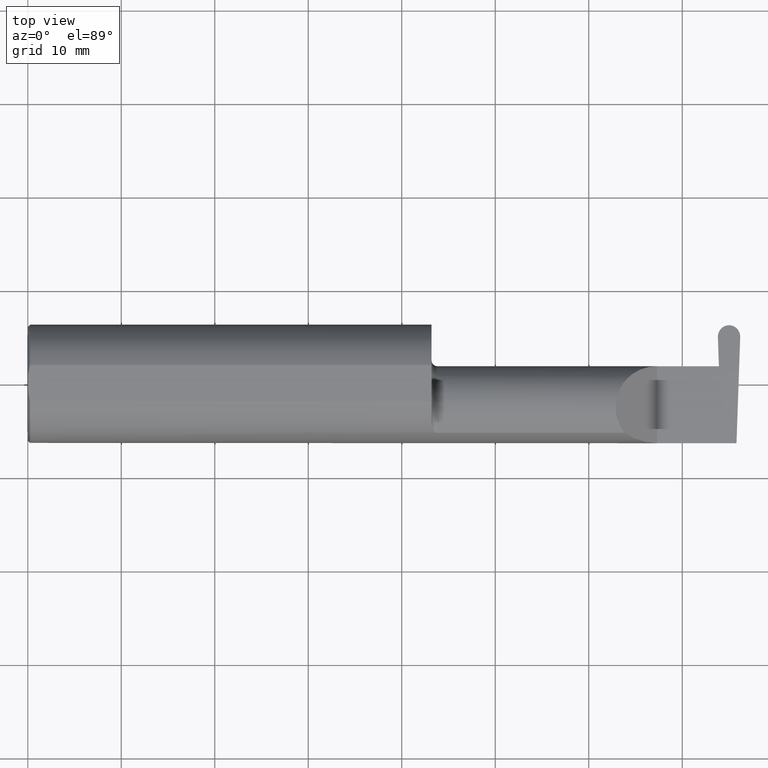
[diagram: clean part render]
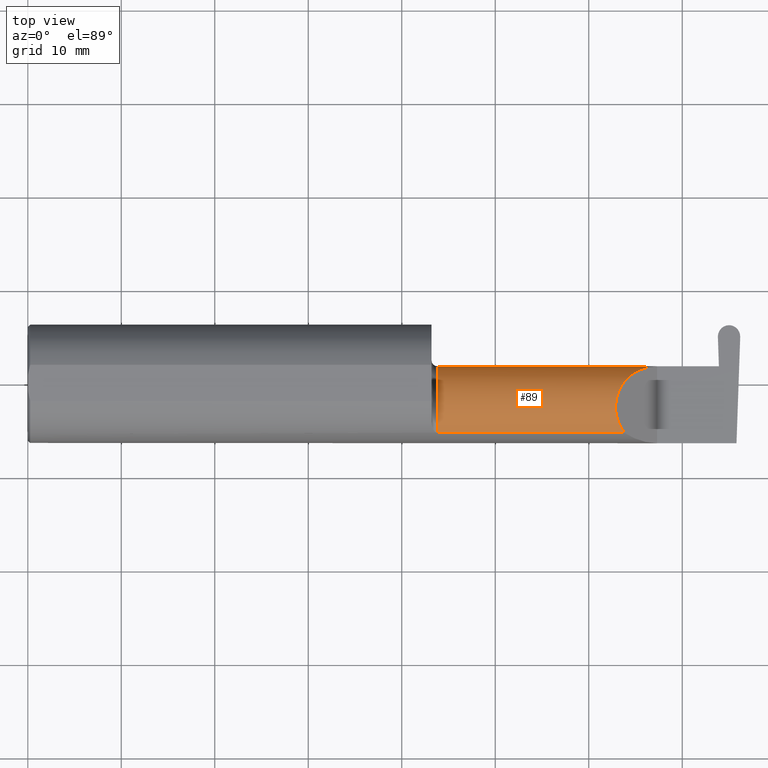
[diagram: same view with one face highlighted and labeled with its STEP entity id]
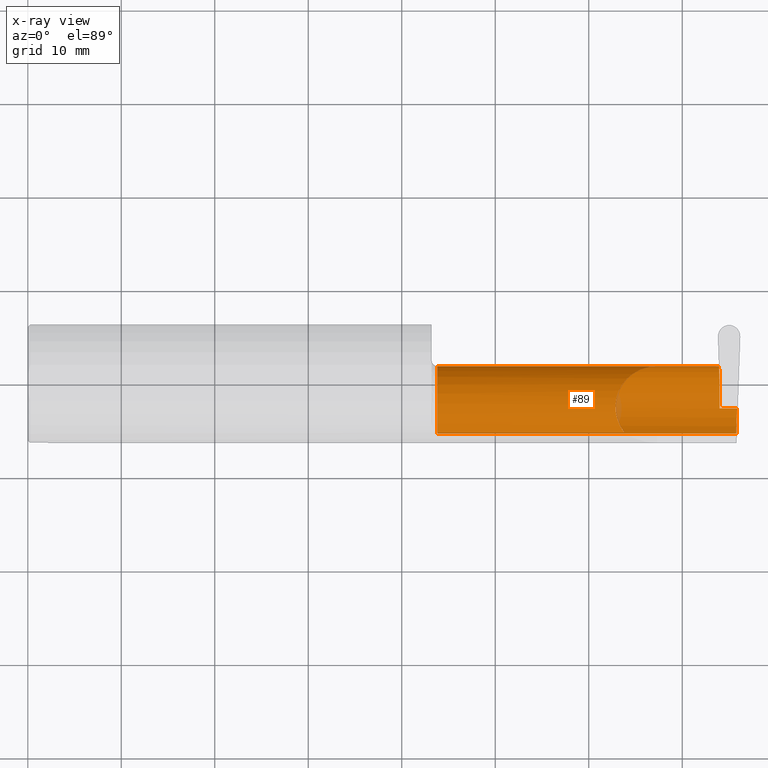
[diagram: x-ray of the same camera — body ghosted, the highlighted face saturated]
A machine part, top view. The second image highlights one B-rep face of the part: STEP entity #89.
The next image is the same camera in x-ray: the body ghosted, the highlighted face saturated — about 1% of this face is hidden behind the body in this view.
In plain terms, the highlighted cylindrical surface (partial cylindrical patch) has radius 4.445 mm, axis along (-1, 0, -0).
Its self-contained STEP definition (entity closure, byte-faithful):
#5 = ORIENTED_EDGE ( 'NONE', *, *, #140, .T. ) ;
#10 = EDGE_LOOP ( 'NONE', ( #5, #610, #444, #145, #21, #114, #254, #671, #198, #668 ) ) ;
#21 = ORIENTED_EDGE ( 'NONE', *, *, #309, .T. ) ;
#23 = DIRECTION ( 'NONE',  ( 1.000000000000000000, -4.247829560181828762E-17, 0.000000000000000000 ) ) ;
#36 = VERTEX_POINT ( 'NONE', #596 ) ;
#39 = FACE_OUTER_BOUND ( 'NONE', #10, .T. ) ;
#51 = VECTOR ( 'NONE', #179, 39.37007874015748143 ) ;
#61 = VECTOR ( 'NONE', #633, 39.37007874015748143 ) ;
#76 = CARTESIAN_POINT ( 'NONE',  ( 3.402190948718818220, -0.1008500000000002589, -0.1750000000000000722 ) ) ;
#78 = CARTESIAN_POINT ( 'NONE',  ( 2.913397403057193191, -0.001152430219566448651, -0.1750000000000001832 ) ) ;
#83 = CARTESIAN_POINT ( 'NONE',  ( 2.986463790105515770, -0.1008500000000002589, -0.1750000000000000722 ) ) ;
#89 = ADVANCED_FACE ( 'NONE', ( #39 ), #476, .T. ) ;
#91 = VERTEX_POINT ( 'NONE', #176 ) ;
#92 = EDGE_CURVE ( 'NONE', #467, #168, #209, .T. ) ;
#105 = CARTESIAN_POINT ( 'NONE',  ( 2.899170153812740125, 0.07414999999999995206, 0.000000000000000000 ) ) ;
#109 = CARTESIAN_POINT ( 'NONE',  ( 2.983360130692194634, -0.2080850024789288044, -0.1382955322609671633 ) ) ;
#114 = ORIENTED_EDGE ( 'NONE', *, *, #503, .F. ) ;
#124 = VERTEX_POINT ( 'NONE', #229 ) ;
#140 = EDGE_CURVE ( 'NONE', #560, #168, #616, .T. ) ;
#142 = VECTOR ( 'NONE', #181, 39.37007874015748143 ) ;
#145 = ORIENTED_EDGE ( 'NONE', *, *, #536, .T. ) ;
#167 = DIRECTION ( 'NONE',  ( -1.000000000000000000, 4.247829560181828762E-17, -0.000000000000000000 ) ) ;
#168 = VERTEX_POINT ( 'NONE', #561 ) ;
#176 = CARTESIAN_POINT ( 'NONE',  ( 2.899170153812740125, 0.07414999999999995206, 0.000000000000000000 ) ) ;
#179 = DIRECTION ( 'NONE',  ( -1.000000000000000000, 4.247829560181828762E-17, -0.000000000000000000 ) ) ;
#181 = DIRECTION ( 'NONE',  ( -1.000000000000000000, -0.000000000000000000, -0.000000000000000000 ) ) ;
#197 = LINE ( 'NONE', #249, #645 ) ;
#198 = ORIENTED_EDGE ( 'NONE', *, *, #546, .F. ) ;
#203 = CARTESIAN_POINT ( 'NONE',  ( 1.725000000000000089, -0.2080850024789288877, 0.1382955322609669413 ) ) ;
#209 = CIRCLE ( 'NONE', #370, 0.1750000000000000444 ) ;
#212 = CARTESIAN_POINT ( 'NONE',  ( 2.482823929317965472, 0.07414999999999999369, 0.1671760706820332731 ) ) ;
#223 = CARTESIAN_POINT ( 'NONE',  ( 1.725000000000000089, -0.1008500000000000785, 0.000000000000000000 ) ) ;
#228 = LINE ( 'NONE', #436, #418 ) ;
#229 = CARTESIAN_POINT ( 'NONE',  ( 2.650000000000000355, 0.07414999999999995206, 1.592040838891556877E-16 ) ) ;
#231 = VERTEX_POINT ( 'NONE', #677 ) ;
#233 = EDGE_CURVE ( 'NONE', #291, #446, #689, .T. ) ;
#249 = CARTESIAN_POINT ( 'NONE',  ( 1.700000000000000178, 0.07414999999999999369, 1.592040838891556877E-16 ) ) ;
#253 = CARTESIAN_POINT ( 'NONE',  ( 2.899063548541081836, 0.07404339472834164937, -0.006107411922940303266 ) ) ;
#254 = ORIENTED_EDGE ( 'NONE', *, *, #233, .F. ) ;
#257 = EDGE_CURVE ( 'NONE', #231, #291, #613, .T. ) ;
#261 = CARTESIAN_POINT ( 'NONE',  ( 2.899099083631634599, 0.07407892981889442618, -0.004071607948626863351 ) ) ;
#291 = VERTEX_POINT ( 'NONE', #523 ) ;
#309 = EDGE_CURVE ( 'NONE', #124, #91, #197, .T. ) ;
#319 = CARTESIAN_POINT ( 'NONE',  ( 2.983360130692194634, -0.2080850024789288044, -0.1382955322609671633 ) ) ;
#353 = CARTESIAN_POINT ( 'NONE',  ( 1.700000000000000178, 0.07404339472834167712, -0.006107411922940873122 ) ) ;
#354 = VERTEX_POINT ( 'NONE', #83 ) ;
#370 = AXIS2_PLACEMENT_3D ( 'NONE', #223, #167, #605 ) ;
#379 = CARTESIAN_POINT ( 'NONE',  ( 2.409263745716142768, -0.07597241004310609225, 0.2407362542838549779 ) ) ;
#392 = DIRECTION ( 'NONE',  ( 0.000000000000000000, -1.000000000000000000, 0.000000000000000000 ) ) ;
#417 = CARTESIAN_POINT ( 'NONE',  ( 2.984022185481226330, -0.1771157075472507281, -0.1623092683844333250 ) ) ;
#418 = VECTOR ( 'NONE', #447, 39.37007874015748143 ) ;
#424 = DIRECTION ( 'NONE',  ( -1.000000000000000000, 4.247829560181828762E-17, -0.000000000000000000 ) ) ;
#431 = CARTESIAN_POINT ( 'NONE',  ( 2.899134618722187362, 0.07411446490944717524, -0.002035803974313431242 ) ) ;
#436 = CARTESIAN_POINT ( 'NONE',  ( 2.315421434999999750, -0.2080850024789287489, 0.1382955322609671633 ) ) ;
#444 = ORIENTED_EDGE ( 'NONE', *, *, #611, .T. ) ;
#446 = VERTEX_POINT ( 'NONE', #540 ) ;
#447 = DIRECTION ( 'NONE',  ( 1.000000000000000000, -4.247829560181828762E-17, 0.000000000000000000 ) ) ;
#451 = CARTESIAN_POINT ( 'NONE',  ( 2.315421434999999750, -0.2080850024789287489, -0.1382955322609671633 ) ) ;
#452 = B_SPLINE_CURVE_WITH_KNOTS ( 'NONE', 3,
 ( #253, #261, #431, #105 ),
 .UNSPECIFIED., .F., .F.,
 ( 4, 4 ),
 ( 0.000000000000000000, 1.000000000000000000 ),
 .UNSPECIFIED. ) ;
#456 = CARTESIAN_POINT ( 'NONE',  ( 2.650000000000000355, 0.07414999999999995206, 1.592040838891556877E-16 ) ) ;
#458 = CARTESIAN_POINT ( 'NONE',  ( 2.910321839925223752, 0.07404339472834164937, -0.006107411922940873990 ) ) ;
#467 = VERTEX_POINT ( 'NONE', #203 ) ;
#476 = CYLINDRICAL_SURFACE ( 'NONE', #649, 0.1750000000000001277 ) ;
#503 = EDGE_CURVE ( 'NONE', #446, #91, #452, .T. ) ;
#521 = EDGE_CURVE ( 'NONE', #560, #354, #567, .T. ) ;
#523 = CARTESIAN_POINT ( 'NONE',  ( 2.910321839925223752, 0.07404339472834164937, -0.006107411922940873990 ) ) ;
#536 = EDGE_CURVE ( 'NONE', #36, #124, #639, .T. ) ;
#540 = CARTESIAN_POINT ( 'NONE',  ( 2.899063548541081836, 0.07404339472834164937, -0.006107411922940303266 ) ) ;
#543 = CARTESIAN_POINT ( 'NONE',  ( 2.985095289412895703, -0.1400387324517232412, -0.1750000000000000722 ) ) ;
#546 = EDGE_CURVE ( 'NONE', #354, #231, #568, .T. ) ;
#560 = VERTEX_POINT ( 'NONE', #109 ) ;
#561 = CARTESIAN_POINT ( 'NONE',  ( 1.725000000000000089, -0.2080850024789288599, -0.1382955322609669691 ) ) ;
#567 =( BOUNDED_CURVE ( )  B_SPLINE_CURVE ( 3, ( #319, #417, #543, #589 ),
 .UNSPECIFIED., .F., .F. ) 
 B_SPLINE_CURVE_WITH_KNOTS ( ( 4, 4 ),
 ( 0.4474640105399506074, 1.107026853503852104 ),
 .UNSPECIFIED. ) 
 CURVE ( )  GEOMETRIC_REPRESENTATION_ITEM ( )  RATIONAL_B_SPLINE_CURVE ( ( 1.000000000000000000, 0.9640754331822833922, 0.9640754331822833922, 1.000000000000000000 ) ) 
 REPRESENTATION_ITEM ( '' )  );
#568 = LINE ( 'NONE', #76, #142 ) ;
#586 = CARTESIAN_POINT ( 'NONE',  ( 1.700000000000000178, -0.1008500000000000785, 0.000000000000000000 ) ) ;
#589 = CARTESIAN_POINT ( 'NONE',  ( 2.986463790105515770, -0.1008500000000002589, -0.1750000000000000722 ) ) ;
#596 = CARTESIAN_POINT ( 'NONE',  ( 2.511704467739031443, -0.2080850024789284436, 0.1382955322609674687 ) ) ;
#605 = DIRECTION ( 'NONE',  ( 0.000000000000000000, -1.000000000000000000, 0.000000000000000000 ) ) ;
#610 = ORIENTED_EDGE ( 'NONE', *, *, #92, .F. ) ;
#611 = EDGE_CURVE ( 'NONE', #467, #36, #228, .T. ) ;
#613 =( BOUNDED_CURVE ( )  B_SPLINE_CURVE ( 3, ( #623, #78, #681, #458 ),
 .UNSPECIFIED., .F., .F. ) 
 B_SPLINE_CURVE_WITH_KNOTS ( ( 4, 4 ),
 ( 3.159045946109738434, 4.694935687864730589 ),
 .UNSPECIFIED. ) 
 CURVE ( )  GEOMETRIC_REPRESENTATION_ITEM ( )  RATIONAL_B_SPLINE_CURVE ( ( 1.000000000000000000, 0.8128932002257714950, 0.8128932002257714950, 1.000000000000000000 ) ) 
 REPRESENTATION_ITEM ( '' )  );
#616 = LINE ( 'NONE', #451, #51 ) ;
#623 = CARTESIAN_POINT ( 'NONE',  ( 2.913428848522521708, -0.1008500000000001479, -0.1750000000000001277 ) ) ;
#633 = DIRECTION ( 'NONE',  ( -1.000000000000000000, 4.247829560181828762E-17, -0.000000000000000000 ) ) ;
#639 =( BOUNDED_CURVE ( )  B_SPLINE_CURVE ( 3, ( #655, #379, #212, #456 ),
 .UNSPECIFIED., .F., .F. ) 
 B_SPLINE_CURVE_WITH_KNOTS ( ( 4, 4 ),
 ( 5.623622464215686456, 7.853981633974482790 ),
 .UNSPECIFIED. ) 
 CURVE ( )  GEOMETRIC_REPRESENTATION_ITEM ( )  RATIONAL_B_SPLINE_CURVE ( ( 1.000000000000000000, 0.6266774836124012760, 0.6266774836124012760, 1.000000000000000000 ) ) 
 REPRESENTATION_ITEM ( '' )  );
#645 = VECTOR ( 'NONE', #23, 39.37007874015748143 ) ;
#649 = AXIS2_PLACEMENT_3D ( 'NONE', #586, #424, #392 ) ;
#655 = CARTESIAN_POINT ( 'NONE',  ( 2.511704467739031443, -0.2080850024789284436, 0.1382955322609674687 ) ) ;
#668 = ORIENTED_EDGE ( 'NONE', *, *, #521, .F. ) ;
#671 = ORIENTED_EDGE ( 'NONE', *, *, #257, .F. ) ;
#677 = CARTESIAN_POINT ( 'NONE',  ( 2.913428848522521708, -0.1008500000000001479, -0.1750000000000001277 ) ) ;
#681 = CARTESIAN_POINT ( 'NONE',  ( 2.912123349427337082, 0.07056399972054018532, -0.1057442486376025254 ) ) ;
#689 = LINE ( 'NONE', #353, #61 ) ;